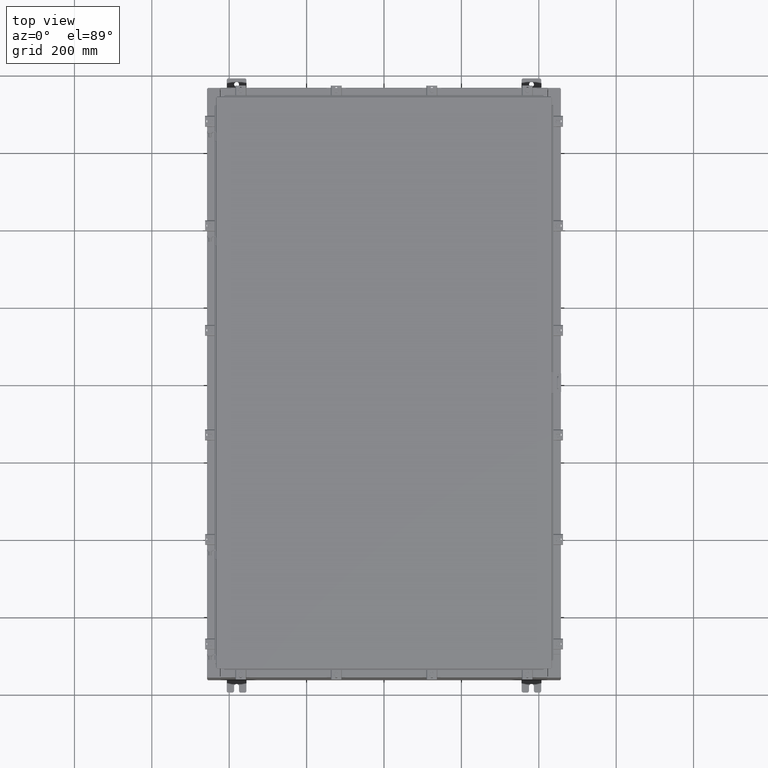
[diagram: clean part render]
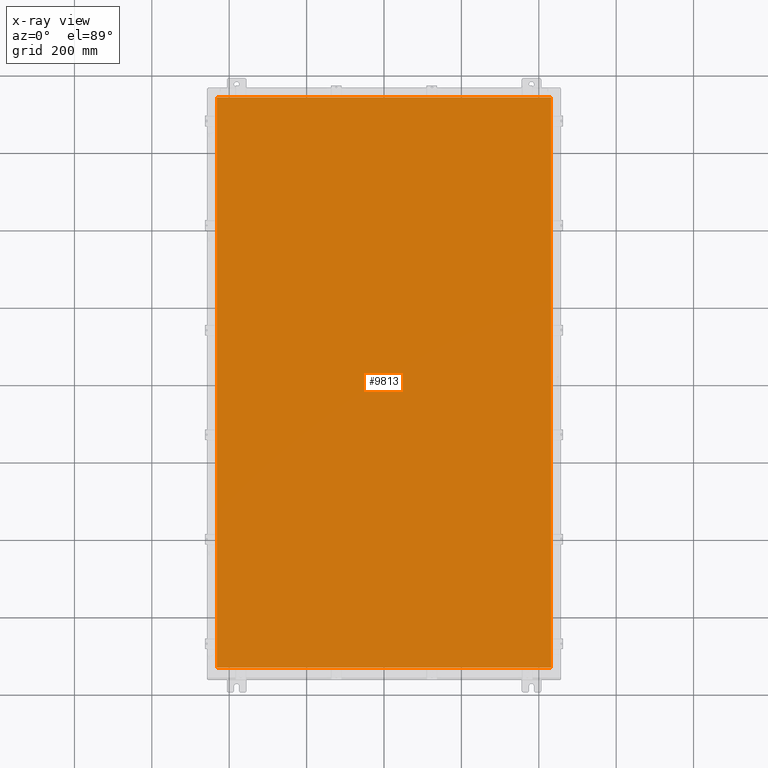
[diagram: x-ray — body ghosted, one internal face saturated and labeled with its STEP entity id]
A machine part, top view, then the same camera in x-ray: the body is ghosted and one INTERNAL B-rep face — a face not visible from any outside direction — is saturated and labeled: STEP entity #9813.
In plain terms, the highlighted planar face has unit normal (0, 0, -1).
Its self-contained STEP definition (entity closure, byte-faithful):
#421 = EDGE_CURVE ( 'NONE', #6507, #7210, #2483, .T. ) ;
#634 = EDGE_CURVE ( 'NONE', #25512, #6507, #7143, .T. ) ;
#1689 = ORIENTED_EDGE ( 'NONE', *, *, #421, .F. ) ;
#2022 = CARTESIAN_POINT ( 'NONE',  ( 16.99030000000000500, -29.00630000000000000, -0.07470000000000019700 ) ) ;
#2225 = EDGE_CURVE ( 'NONE', #7210, #23235, #27022, .T. ) ;
#2483 = LINE ( 'NONE', #27432, #27443 ) ;
#3400 = CARTESIAN_POINT ( 'NONE',  ( -16.99029999999999800, -29.00630000000000300, -0.07470000000000000300 ) ) ;
#3432 = EDGE_CURVE ( 'NONE', #23235, #25512, #13675, .T. ) ;
#6415 = ORIENTED_EDGE ( 'NONE', *, *, #2225, .F. ) ;
#6507 = VERTEX_POINT ( 'NONE', #23067 ) ;
#7137 = EDGE_LOOP ( 'NONE', ( #25799, #6415, #1689, #23586 ) ) ;
#7143 = LINE ( 'NONE', #24316, #17124 ) ;
#7210 = VERTEX_POINT ( 'NONE', #3400 ) ;
#8308 = CARTESIAN_POINT ( 'NONE',  ( 0.0000000000000000000, 0.0000000000000000000, -0.07470000000000000300 ) ) ;
#9813 = ADVANCED_FACE ( 'NONE', ( #26990 ), #18899, .T. ) ;
#10430 = DIRECTION ( 'NONE',  ( 0.0000000000000000000, -1.000000000000000000, 0.0000000000000000000 ) ) ;
#10460 = DIRECTION ( 'NONE',  ( -1.000000000000000000, 0.0000000000000000000, -0.0000000000000000000 ) ) ;
#13525 = CARTESIAN_POINT ( 'NONE',  ( 16.99030000000000500, -29.00630000000000300, -0.07470000000000000300 ) ) ;
#13675 = LINE ( 'NONE', #2022, #24289 ) ;
#16442 = DIRECTION ( 'NONE',  ( 1.000000000000000000, -0.0000000000000000000, -0.0000000000000000000 ) ) ;
#17124 = VECTOR ( 'NONE', #20042, 39.37007874015748100 ) ;
#17563 = AXIS2_PLACEMENT_3D ( 'NONE', #8308, #23148, #10460 ) ;
#18096 = CARTESIAN_POINT ( 'NONE',  ( 16.99030000000000500, 29.00630000000000000, -0.07470000000000000300 ) ) ;
#18899 = PLANE ( 'NONE',  #17563 ) ;
#20042 = DIRECTION ( 'NONE',  ( -1.000000000000000000, -0.0000000000000000000, -0.0000000000000000000 ) ) ;
#21237 = DIRECTION ( 'NONE',  ( 0.0000000000000000000, 1.000000000000000000, 0.0000000000000000000 ) ) ;
#21379 = VECTOR ( 'NONE', #16442, 39.37007874015748100 ) ;
#22744 = CARTESIAN_POINT ( 'NONE',  ( -16.99029999999999400, -29.00630000000000700, -0.07469999999999804600 ) ) ;
#23067 = CARTESIAN_POINT ( 'NONE',  ( -16.99029999999999800, 29.00630000000000000, -0.07470000000000000300 ) ) ;
#23148 = DIRECTION ( 'NONE',  ( 0.0000000000000000000, 0.0000000000000000000, -1.000000000000000000 ) ) ;
#23235 = VERTEX_POINT ( 'NONE', #13525 ) ;
#23586 = ORIENTED_EDGE ( 'NONE', *, *, #634, .F. ) ;
#24289 = VECTOR ( 'NONE', #21237, 39.37007874015748100 ) ;
#24316 = CARTESIAN_POINT ( 'NONE',  ( 16.99030000000000100, 29.00630000000000300, -0.07469999999999804600 ) ) ;
#25512 = VERTEX_POINT ( 'NONE', #18096 ) ;
#25799 = ORIENTED_EDGE ( 'NONE', *, *, #3432, .F. ) ;
#26990 = FACE_OUTER_BOUND ( 'NONE', #7137, .T. ) ;
#27022 = LINE ( 'NONE', #22744, #21379 ) ;
#27432 = CARTESIAN_POINT ( 'NONE',  ( -16.99029999999999800, 29.00629999999998900, -0.07470000000000019700 ) ) ;
#27443 = VECTOR ( 'NONE', #10430, 39.37007874015748100 ) ;